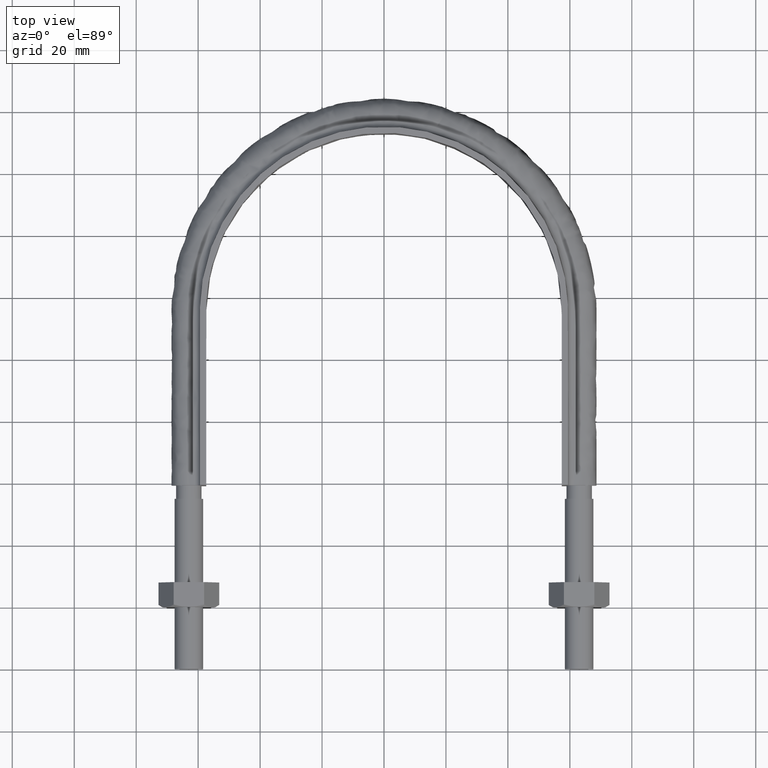
[diagram: clean part render]
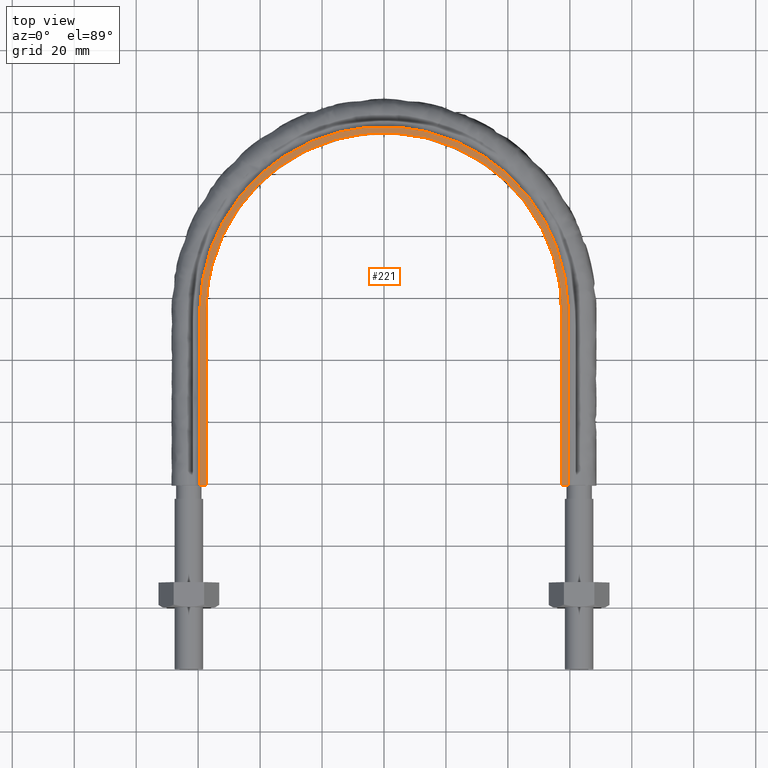
[diagram: same view with one face highlighted and labeled with its STEP entity id]
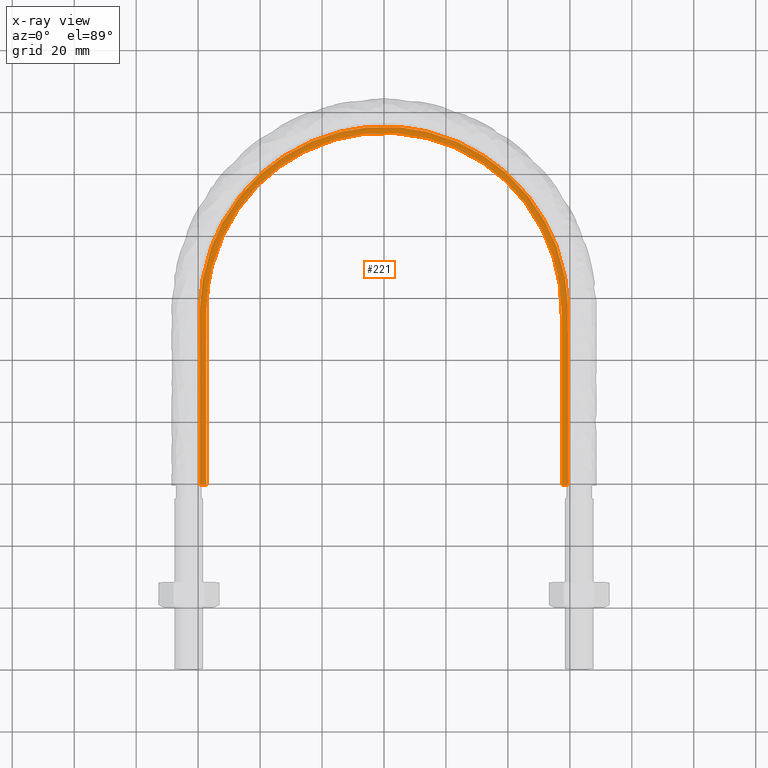
[diagram: x-ray of the same camera — body ghosted, the highlighted face saturated]
A machine part, top view. The second image highlights one B-rep face of the part: STEP entity #221.
The next image is the same camera in x-ray: the body ghosted, the highlighted face saturated — about 0% of this face is hidden behind the body in this view.
In plain terms, the highlighted planar face has unit normal (0, 0, 1).
Its self-contained STEP definition (entity closure, byte-faithful):
#221 = ADVANCED_FACE( '', ( #299 ), #300, .T. );
#299 = FACE_OUTER_BOUND( '', #466, .T. );
#300 = PLANE( '', #467 );
#466 = EDGE_LOOP( '', ( #1298, #1299, #1300, #1301 ) );
#467 = AXIS2_PLACEMENT_3D( '', #1302, #1303, #1304 );
#1298 = ORIENTED_EDGE( '', *, *, #1818, .T. );
#1299 = ORIENTED_EDGE( '', *, *, #1824, .F. );
#1300 = ORIENTED_EDGE( '', *, *, #1825, .T. );
#1301 = ORIENTED_EDGE( '', *, *, #1826, .F. );
#1302 = CARTESIAN_POINT( '', ( 75.0000000000000, 189.300000000000, 12.5000000000000 ) );
#1303 = DIRECTION( '', ( 0.000000000000000, 0.000000000000000, 1.00000000000000 ) );
#1304 = DIRECTION( '', ( 1.00000000000000, 0.000000000000000, 0.000000000000000 ) );
#1818 = EDGE_CURVE( '', #1970, #1967, #1971, .F. );
#1824 = EDGE_CURVE( '', #1980, #1967, #1981, .T. );
#1825 = EDGE_CURVE( '', #1980, #1982, #1983, .F. );
#1826 = EDGE_CURVE( '', #1970, #1982, #1984, .T. );
#1967 = VERTEX_POINT( '', #2213 );
#1970 = VERTEX_POINT( '', #2217 );
#1971 = LINE( '', #2218, #2219 );
#1980 = VERTEX_POINT( '', #2290 );
#1981 = B_SPLINE_CURVE_WITH_KNOTS( '', 3, ( #2291, #2292, #2293, #2294, #2295, #2296, #2297, #2298, #2299, #2300, #2301, #2302, #2303, #2304, #2305, #2306, #2307, #2308, #2309, #2310, #2311, #2312, #2313, #2314, #2315, #2316, #2317, #2318, #2319, #2320, #2321, #2322, #2323, #2324, #2325, #2326, #2327, #2328, #2329, #2330, #2331, #2332, #2333, #2334, #2335, #2336, #2337, #2338, #2339, #2340, #2341, #2342, #2343, #2344, #2345, #2346, #2347, #2348, #2349, #2350, #2351, #2352, #2353, #2354, #2355, #2356, #2357, #2358, #2359, #2360, #2361, #2362, #2363, #2364, #2365, #2366, #2367, #2368, #2369, #2370, #2371, #2372, #2373, #2374, #2375, #2376, #2377, #2378 ), .UNSPECIFIED., .F., .F., ( 4, 1, 2, 2, 2, 2, 2, 2, 2, 2, 2, 2, 2, 2, 2, 2, 2, 2, 2, 2, 2, 2, 2, 2, 2, 2, 2, 2, 2, 2, 2, 2, 2, 2, 2, 2, 2, 2, 2, 2, 2, 2, 2, 1, 4 ), ( 6.93889390390723E-018, 0.0368006591004063, 0.0552009886506094, 0.0575010298443848, 0.0598010710381602, 0.0644011534257111, 0.0736013182008128, 0.0782014005883636, 0.0805014417821391, 0.0828014829759145, 0.0920016477510162, 0.0966017301385670, 0.0989017713323425, 0.101201812526118, 0.110401977301220, 0.115002059688771, 0.117302100882546, 0.119602142076322, 0.128802306851423, 0.133402389238974, 0.135702430432750, 0.138002471626525, 0.147202636401627, 0.156402801176728, 0.158702842370504, 0.161002883564279, 0.165602965951830, 0.174803130726932, 0.177103171920707, 0.179403213114483, 0.184003295502034, 0.193203460277135, 0.195503501470911, 0.197803542664686, 0.202403625052237, 0.211603789827339, 0.213903831021114, 0.216203872214890, 0.220803954602441, 0.230004119377542, 0.234604201765093, 0.236904242958868, 0.239204284152644, 0.257604613702847, 0.294405272803254 ), .UNSPECIFIED. );
#1982 = VERTEX_POINT( '', #2379 );
#1983 = LINE( '', #2380, #2381 );
#1984 = B_SPLINE_CURVE_WITH_KNOTS( '', 3, ( #2382, #2383, #2384, #2385, #2386, #2387, #2388, #2389, #2390, #2391, #2392, #2393, #2394, #2395, #2396, #2397 ), .UNSPECIFIED., .F., .F., ( 4, 3, 1, 1, 1, 1, 1, 1, 3, 4 ), ( 0.0630615640598998, 1.00000000000000, 2.00000000000000, 3.00000000000000, 4.00000000000000, 5.00000000000000, 6.00000000000000, 7.00000000000000, 8.00000000000000, 8.93693843594010 ), .UNSPECIFIED. );
#2213 = CARTESIAN_POINT( '', ( -57.4000000000000, 59.3000000000000, 12.5000000000000 ) );
#2217 = CARTESIAN_POINT( '', ( -59.4000000000000, 59.3000000000000, 12.5000000000000 ) );
#2218 = CARTESIAN_POINT( '', ( 75.0000000000000, 59.3000000000000, 12.5000000000000 ) );
#2219 = VECTOR( '', #2856, 1000.00000000000 );
#2290 = CARTESIAN_POINT( '', ( 57.4000000000000, 59.3000000000000, 12.5000000000000 ) );
#2291 = CARTESIAN_POINT( '', ( 57.4000000000000, 59.3000000000000, 12.5000000000000 ) );
#2292 = CARTESIAN_POINT( '', ( 57.4000000000000, 71.5668971504807, 12.5000000000000 ) );
#2293 = CARTESIAN_POINT( '', ( 57.4000000000000, 89.9672428762017, 12.5000000000000 ) );
#2294 = CARTESIAN_POINT( '', ( 57.4000000000000, 108.367588601923, 12.5000000000000 ) );
#2295 = CARTESIAN_POINT( '', ( 57.4000000000000, 115.267718249068, 12.5000000000000 ) );
#2296 = CARTESIAN_POINT( '', ( 57.4036066457802, 116.034404103252, 12.5000000000000 ) );
#2297 = CARTESIAN_POINT( '', ( 57.3712056389476, 117.567723284528, 12.5000000000000 ) );
#2298 = CARTESIAN_POINT( '', ( 57.3393359788148, 118.335375304587, 12.5000000000000 ) );
#2299 = CARTESIAN_POINT( '', ( 57.1976234100831, 120.630663469964, 12.5000000000000 ) );
#2300 = CARTESIAN_POINT( '', ( 57.0421967518527, 122.147180453960, 12.5000000000000 ) );
#2301 = CARTESIAN_POINT( '', ( 56.4004013757546, 126.657352705708, 12.5000000000000 ) );
#2302 = CARTESIAN_POINT( '', ( 55.7399883057787, 129.611959318387, 12.5000000000000 ) );
#2303 = CARTESIAN_POINT( '', ( 54.4013047063944, 133.965777471156, 12.5000000000000 ) );
#2304 = CARTESIAN_POINT( '', ( 53.8966972928597, 135.403952132018, 12.5000000000000 ) );
#2305 = CARTESIAN_POINT( '', ( 53.0487681131460, 137.540793277908, 12.5000000000000 ) );
#2306 = CARTESIAN_POINT( '', ( 52.7511260023258, 138.248939019185, 12.5000000000000 ) );
#2307 = CARTESIAN_POINT( '', ( 52.1306487491250, 139.645579267383, 12.5000000000000 ) );
#2308 = CARTESIAN_POINT( '', ( 51.8071932048135, 140.335643312283, 12.5000000000000 ) );
#2309 = CARTESIAN_POINT( '', ( 50.1243560027939, 143.745011154793, 12.5000000000000 ) );
#2310 = CARTESIAN_POINT( '', ( 48.5704537429599, 146.342805722191, 12.5000000000000 ) );
#2311 = CARTESIAN_POINT( '', ( 45.9378759805748, 150.051022440816, 12.5000000000000 ) );
#2312 = CARTESIAN_POINT( '', ( 45.0097482486542, 151.255485755391, 12.5000000000000 ) );
#2313 = CARTESIAN_POINT( '', ( 43.5399840512472, 153.013724230868, 12.5000000000000 ) );
#2314 = CARTESIAN_POINT( '', ( 43.0360401908091, 153.592882580464, 12.5000000000000 ) );
#2315 = CARTESIAN_POINT( '', ( 42.0071679355064, 154.728730541199, 12.5000000000000 ) );
#2316 = CARTESIAN_POINT( '', ( 41.4830799771197, 155.284602734684, 12.5000000000000 ) );
#2317 = CARTESIAN_POINT( '', ( 38.8150256208348, 158.004509636062, 12.5000000000000 ) );
#2318 = CARTESIAN_POINT( '', ( 36.5289375337691, 159.991083678085, 12.5000000000000 ) );
#2319 = CARTESIAN_POINT( '', ( 32.8725465474710, 162.687177301449, 12.5000000000000 ) );
#2320 = CARTESIAN_POINT( '', ( 31.6159998625510, 163.538738914915, 12.5000000000000 ) );
#2321 = CARTESIAN_POINT( '', ( 29.6741600235068, 164.744883379300, 12.5000000000000 ) );
#2322 = CARTESIAN_POINT( '', ( 29.0173621705769, 165.135046972001, 12.5000000000000 ) );
#2323 = CARTESIAN_POINT( '', ( 27.6844813094563, 165.891293691475, 12.5000000000000 ) );
#2324 = CARTESIAN_POINT( '', ( 27.0092860879624, 166.256786401143, 12.5000000000000 ) );
#2325 = CARTESIAN_POINT( '', ( 23.6148955512584, 168.008321558919, 12.5000000000000 ) );
#2326 = CARTESIAN_POINT( '', ( 20.8188839208601, 169.181221130253, 12.5000000000000 ) );
#2327 = CARTESIAN_POINT( '', ( 16.5063575914382, 170.604430974849, 12.5000000000000 ) );
#2328 = CARTESIAN_POINT( '', ( 15.0489724833804, 171.022456876126, 12.5000000000000 ) );
#2329 = CARTESIAN_POINT( '', ( 12.8322199583379, 171.562489310090, 12.5000000000000 ) );
#2330 = CARTESIAN_POINT( '', ( 12.0881682606319, 171.727937467103, 12.5000000000000 ) );
#2331 = CARTESIAN_POINT( '', ( 10.5896803128537, 172.029378956679, 12.5000000000000 ) );
#2332 = CARTESIAN_POINT( '', ( 9.83354107507674, 172.165648447286, 12.5000000000000 ) );
#2333 = CARTESIAN_POINT( '', ( 6.05033946504701, 172.768951449387, 12.5000000000000 ) );
#2334 = CARTESIAN_POINT( '', ( 3.02331961872779, 173.004107282322, 12.5000000000000 ) );
#2335 = CARTESIAN_POINT( '', ( -3.03159229771674, 173.003674706655, 12.5000000000000 ) );
#2336 = CARTESIAN_POINT( '', ( -6.05948435362816, 172.768093969407, 12.5000000000000 ) );
#2337 = CARTESIAN_POINT( '', ( -9.84492369258674, 172.163681704027, 12.5000000000000 ) );
#2338 = CARTESIAN_POINT( '', ( -10.6002721762764, 172.027389123451, 12.5000000000000 ) );
#2339 = CARTESIAN_POINT( '', ( -12.0978185021844, 171.725853405146, 12.5000000000000 ) );
#2340 = CARTESIAN_POINT( '', ( -12.8414452252180, 171.560367013092, 12.5000000000000 ) );
#2341 = CARTESIAN_POINT( '', ( -15.0570550081485, 171.020235378931, 12.5000000000000 ) );
#2342 = CARTESIAN_POINT( '', ( -16.5138535706963, 170.602163316093, 12.5000000000000 ) );
#2343 = CARTESIAN_POINT( '', ( -20.8250913381977, 169.178758755140, 12.5000000000000 ) );
#2344 = CARTESIAN_POINT( '', ( -23.6208691240751, 168.005657850112, 12.5000000000000 ) );
#2345 = CARTESIAN_POINT( '', ( -27.0156329102760, 166.253406103617, 12.5000000000000 ) );
#2346 = CARTESIAN_POINT( '', ( -27.6910147520960, 165.887696886022, 12.5000000000000 ) );
#2347 = CARTESIAN_POINT( '', ( -29.0234575114923, 165.131477440111, 12.5000000000000 ) );
#2348 = CARTESIAN_POINT( '', ( -29.6800585802787, 164.741324040592, 12.5000000000000 ) );
#2349 = CARTESIAN_POINT( '', ( -31.6213689725298, 163.535193660409, 12.5000000000000 ) );
#2350 = CARTESIAN_POINT( '', ( -32.8776437603805, 162.683619457023, 12.5000000000000 ) );
#2351 = CARTESIAN_POINT( '', ( -36.5334220827474, 159.987374398228, 12.5000000000000 ) );
#2352 = CARTESIAN_POINT( '', ( -38.8193751731554, 158.000549631674, 12.5000000000000 ) );
#2353 = CARTESIAN_POINT( '', ( -41.4874843976750, 155.279993585617, 12.5000000000000 ) );
#2354 = CARTESIAN_POINT( '', ( -42.0115944312468, 154.723974530571, 12.5000000000000 ) );
#2355 = CARTESIAN_POINT( '', ( -43.0405299781912, 153.587794110931, 12.5000000000000 ) );
#2356 = CARTESIAN_POINT( '', ( -43.5442393747025, 153.008765306378, 12.5000000000000 ) );
#2357 = CARTESIAN_POINT( '', ( -45.0135877457227, 151.250627800789, 12.5000000000000 ) );
#2358 = CARTESIAN_POINT( '', ( -45.9415210243651, 150.046162448528, 12.5000000000000 ) );
#2359 = CARTESIAN_POINT( '', ( -48.5736917716303, 146.337694282144, 12.5000000000000 ) );
#2360 = CARTESIAN_POINT( '', ( -50.1275589688897, 143.739408642437, 12.5000000000000 ) );
#2361 = CARTESIAN_POINT( '', ( -51.8104283189417, 140.328866111214, 12.5000000000000 ) );
#2362 = CARTESIAN_POINT( '', ( -52.1338941649284, 139.638538815899, 12.5000000000000 ) );
#2363 = CARTESIAN_POINT( '', ( -52.7543954652596, 138.241312252746, 12.5000000000000 ) );
#2364 = CARTESIAN_POINT( '', ( -53.0520667494113, 137.532782600104, 12.5000000000000 ) );
#2365 = CARTESIAN_POINT( '', ( -53.8993605656225, 135.396631283103, 12.5000000000000 ) );
#2366 = CARTESIAN_POINT( '', ( -54.4036525659497, 133.958777453083, 12.5000000000000 ) );
#2367 = CARTESIAN_POINT( '', ( -55.7415838846627, 129.605493588584, 12.5000000000000 ) );
#2368 = CARTESIAN_POINT( '', ( -56.4017548199478, 126.650676383386, 12.5000000000000 ) );
#2369 = CARTESIAN_POINT( '', ( -57.0431251208449, 122.139233624254, 12.5000000000000 ) );
#2370 = CARTESIAN_POINT( '', ( -57.1984001624354, 120.622133130999, 12.5000000000000 ) );
#2371 = CARTESIAN_POINT( '', ( -57.3398068241163, 118.325705356889, 12.5000000000000 ) );
#2372 = CARTESIAN_POINT( '', ( -57.3715266179354, 117.558403382567, 12.5000000000000 ) );
#2373 = CARTESIAN_POINT( '', ( -57.4036727794919, 116.025333757737, 12.5000000000000 ) );
#2374 = CARTESIAN_POINT( '', ( -57.4000000000000, 115.258769855846, 12.5000000000000 ) );
#2375 = CARTESIAN_POINT( '', ( -57.4000000000000, 108.359743435262, 12.5000000000000 ) );
#2376 = CARTESIAN_POINT( '', ( -57.4000000000000, 89.9623396470387, 12.5000000000000 ) );
#2377 = CARTESIAN_POINT( '', ( -57.4000000000000, 71.5649358588155, 12.5000000000000 ) );
#2378 = CARTESIAN_POINT( '', ( -57.4000000000000, 59.3000000000000, 12.5000000000000 ) );
#2379 = CARTESIAN_POINT( '', ( 59.4000000000000, 59.3000000000000, 12.5000000000000 ) );
#2380 = CARTESIAN_POINT( '', ( 75.0000000000000, 59.3000000000000, 12.5000000000000 ) );
#2381 = VECTOR( '', #2859, 1000.00000000000 );
#2382 = CARTESIAN_POINT( '', ( -59.4000000000000, 59.3000000000000, 12.5000000000000 ) );
#2383 = CARTESIAN_POINT( '', ( -59.4000000000000, 78.0700000000000, 12.5000000000000 ) );
#2384 = CARTESIAN_POINT( '', ( -59.4000000000000, 96.8400000000000, 12.5000000000000 ) );
#2385 = CARTESIAN_POINT( '', ( -59.4000000000000, 115.610000000000, 12.5000000000000 ) );
#2386 = CARTESIAN_POINT( '', ( -59.4000000000000, 124.484817836499, 12.5000000000000 ) );
#2387 = CARTESIAN_POINT( '', ( -55.3444933644878, 142.266836188810, 12.5000000000000 ) );
#2388 = CARTESIAN_POINT( '', ( -38.2995777447149, 163.635011205915, 12.5000000000000 ) );
#2389 = CARTESIAN_POINT( '', ( -13.6689610391051, 175.497859339137, 12.5000000000000 ) );
#2390 = CARTESIAN_POINT( '', ( 13.6689610391052, 175.497859339137, 12.5000000000000 ) );
#2391 = CARTESIAN_POINT( '', ( 38.2995777447150, 163.635011205915, 12.5000000000000 ) );
#2392 = CARTESIAN_POINT( '', ( 55.3444933644878, 142.266836188810, 12.5000000000000 ) );
#2393 = CARTESIAN_POINT( '', ( 59.4000000000000, 124.484817836499, 12.5000000000000 ) );
#2394 = CARTESIAN_POINT( '', ( 59.4000000000000, 115.610000000000, 12.5000000000000 ) );
#2395 = CARTESIAN_POINT( '', ( 59.4000000000000, 96.8399999999999, 12.5000000000000 ) );
#2396 = CARTESIAN_POINT( '', ( 59.4000000000000, 78.0700000000000, 12.5000000000000 ) );
#2397 = CARTESIAN_POINT( '', ( 59.4000000000000, 59.3000000000000, 12.5000000000000 ) );
#2856 = DIRECTION( '', ( -1.00000000000000, 1.83649404852125E-048, 0.000000000000000 ) );
#2859 = DIRECTION( '', ( -1.00000000000000, 1.83649404852125E-048, 0.000000000000000 ) );